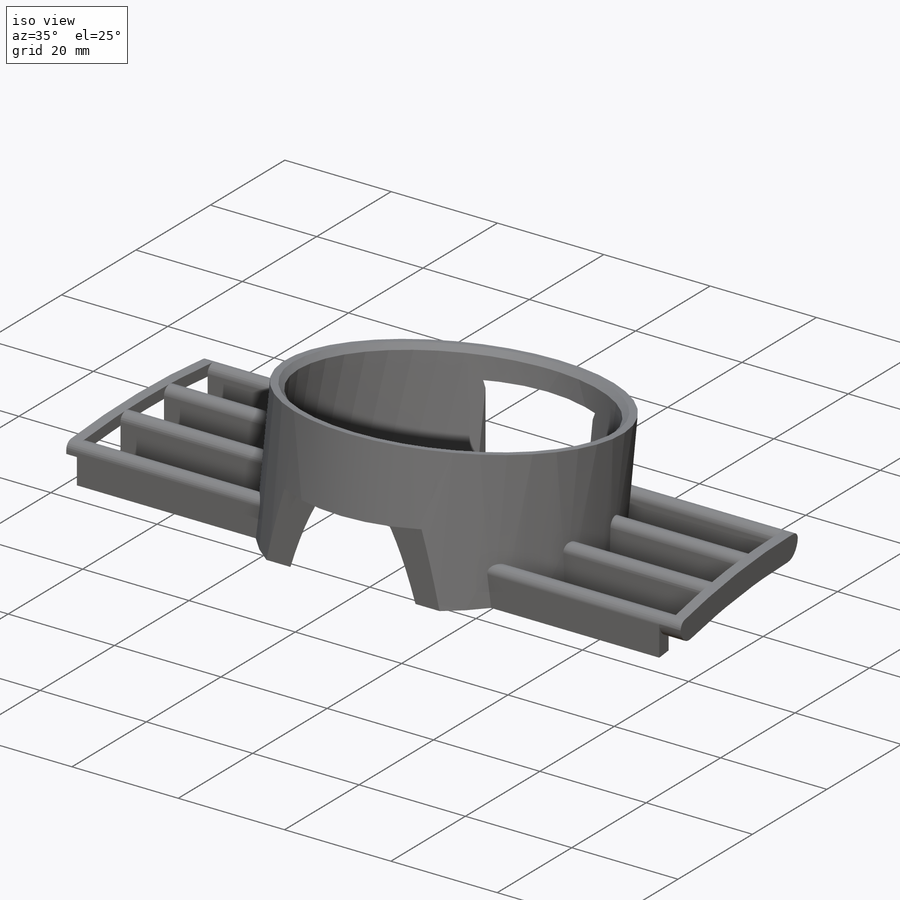
[diagram: iso view]
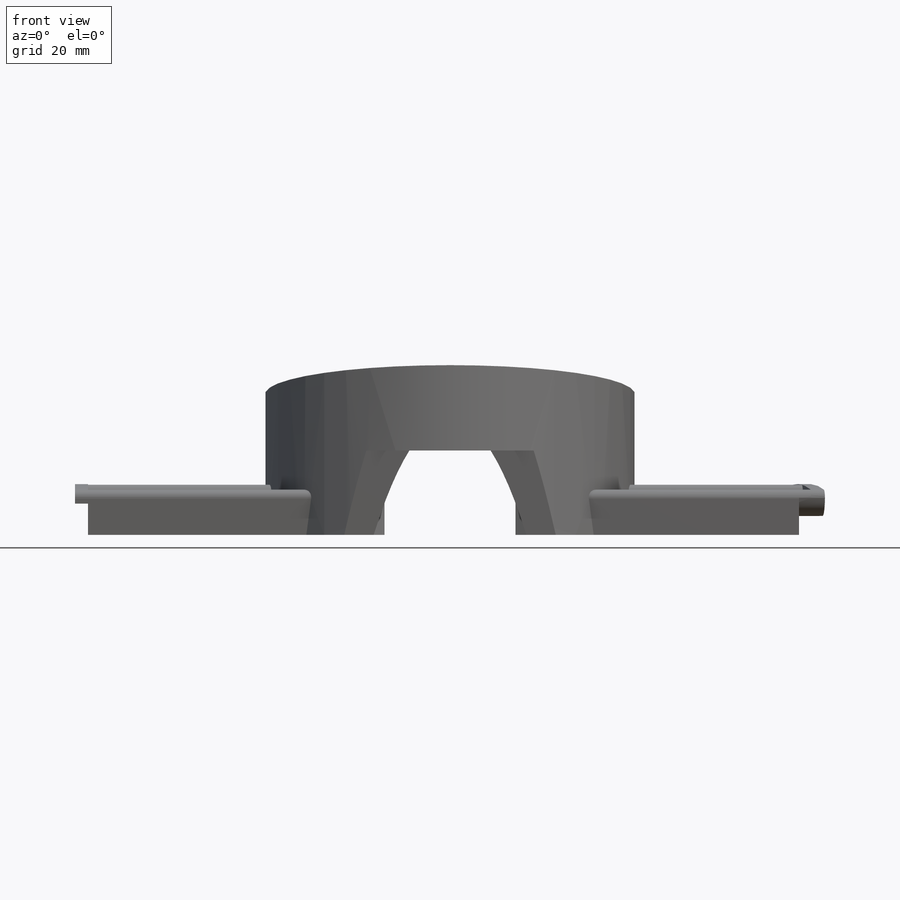
[diagram: front view]
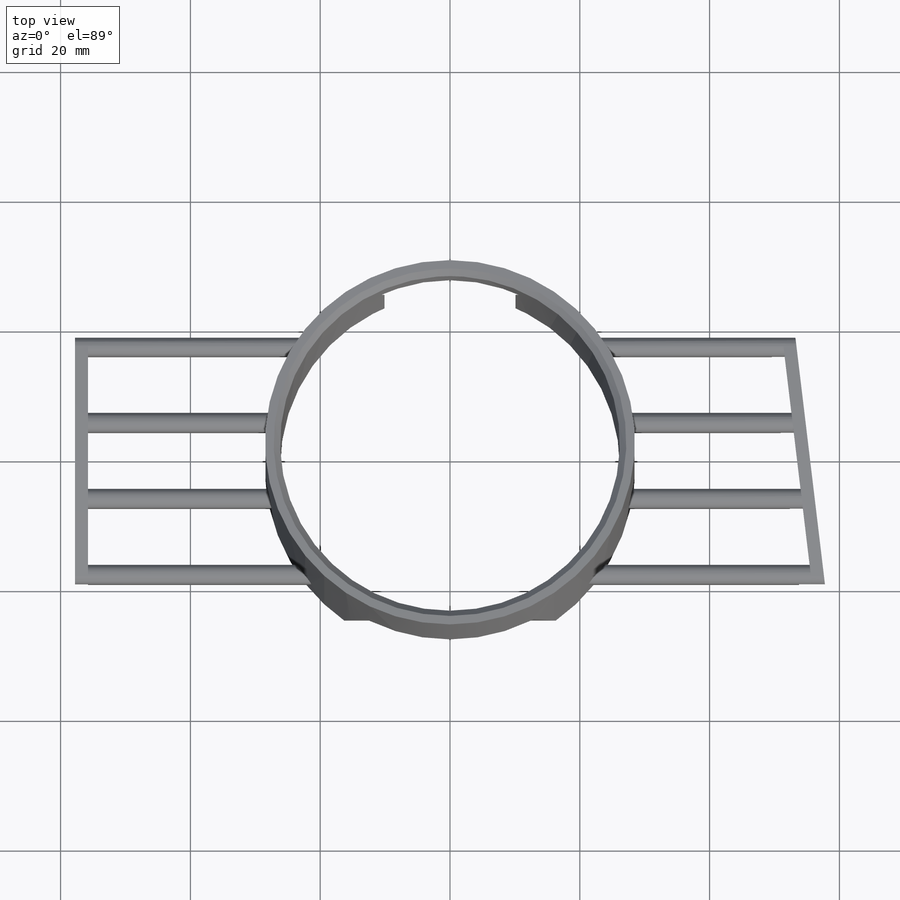
[diagram: top view]
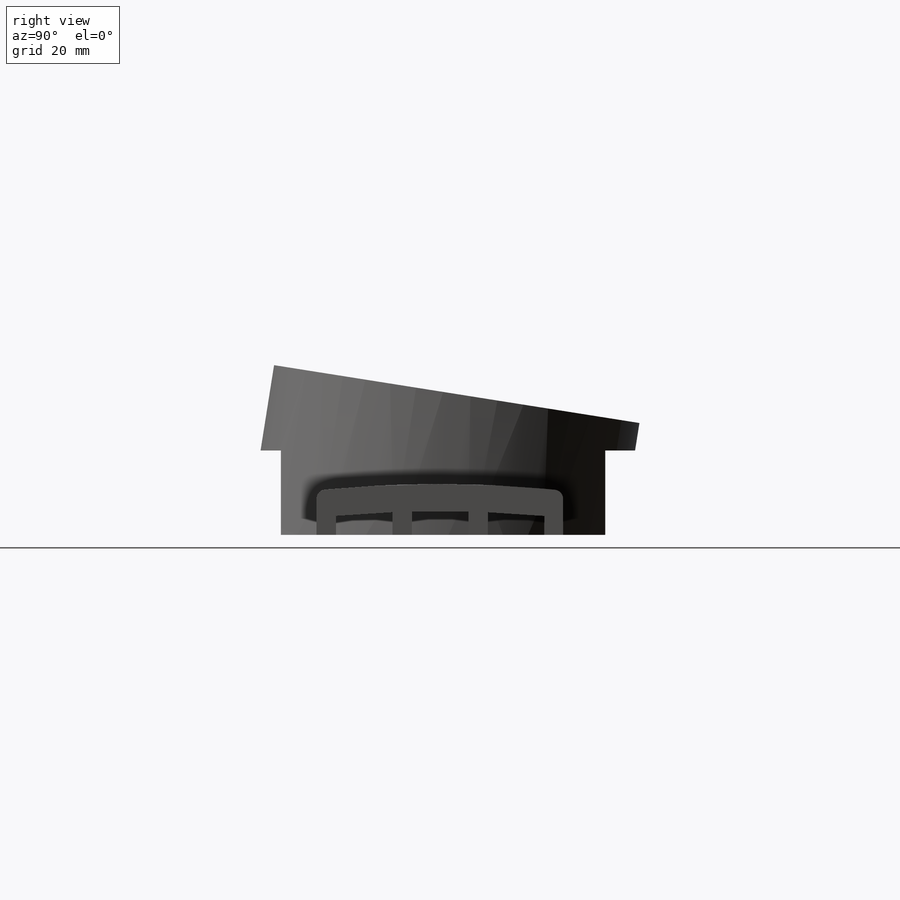
[diagram: right view]
SOLIDWORKS PART (.sldprt)
format: sldprt  version: not decoded by parser v0  size: 616,960 bytes
history: native  units: mm
features: sketch x13, cut_extrude x9, extrude x4, plane x2, fillet x2, material x1, chamfer x1 (+13 scaffold rows collapsed)
feature tree (45):
  scaffold x13  (default folders/planes/origin — collapsed)
  material  "Material <not specified>"
  sketch  "Sketch1"  dims[c1.D2=43.0mm c1.D4=181.0mm c1.D1=8.0mm c1.D3=38.0mm c2.D2=5.0mm]
  extrude  "Boss-Extrude1"  Depth=115.55mm
  sketch  "Sketch2"  dims[c1.D1=2.45mm c1.D2=5.65mm c1.D4=2.45mm c1.D5=3.0mm c2.D1=3.0mm c2.D2=8.7mm c2.D3=3.0mm c2.D4=3.0mm c3.D3=3.0mm c3.D5=103.6mm]
  cut_extrude  "Cut-Extrude1"  [1 undecoded]
  plane  "Plane1"
  plane  "Plane2"  Offset=23mm
  sketch  "Sketch7"  dims[D1=57.0mm D2=52.35mm D3=1.0mm]
  extrude  "Boss-Extrude5"  Depth=33mm
  sketch  "Sketch8"  dims[c1.D1=3.0mm c2.D1=~179.686199deg c3.D1=4.0mm]
  cut_extrude  "Cut-Extrude3"  [1 undecoded]
  sketch  "Sketch9"
  cut_extrude  "Cut-Extrude4"  [1 undecoded]
  sketch  "Sketch10"  dims[D1=111.0mm]
  cut_extrude  "Cut-Extrude5"  [1 undecoded]
  sketch  "Sketch11"  dims[D1=5.8mm D2=13.0mm 5=5.5mm D3=6.5mm D4=10.0mm]
  cut_extrude  "Cut-Extrude6"  [1 undecoded]
  sketch  "Sketch12"
  cut_extrude  "Cut-Extrude7"  [1 undecoded]
  sketch  "Sketch13"  dims[D1=2.0mm]
  extrude  "Boss-Extrude6"  Depth=2mm
  sketch  "Sketch14"  dims[D1=2.0mm]
  cut_extrude  "Cut-Extrude8"  Depth=2mm
  sketch  "Sketch15"  dims[D1=4.2mm]
  extrude  "Boss-Extrude7"  Depth=2mm
  sketch  "Sketch16"  dims[D1=4.2mm]
  cut_extrude  "Cut-Extrude9"  Depth=4mm
  fillet  "Fillet1"  Radius=3mm
  sketch  "Sketch18"  dims[D1=13.0mm]
  cut_extrude  "Cut-Extrude10"  Depth=22mm
  fillet  "Fillet2"  Radius=1.4mm
  chamfer  "Chamfer1"  Distance=1mm Angle=45deg
decode coverage: 21 of 29 modeling features carry decoded parameters
note: ~ marks probable driven/reference dimensions
note: 6 parameter values undecoded
summary: no parameter record found for 6 features
note: suppression state not decoded; provenance and decode notes live in map.json
